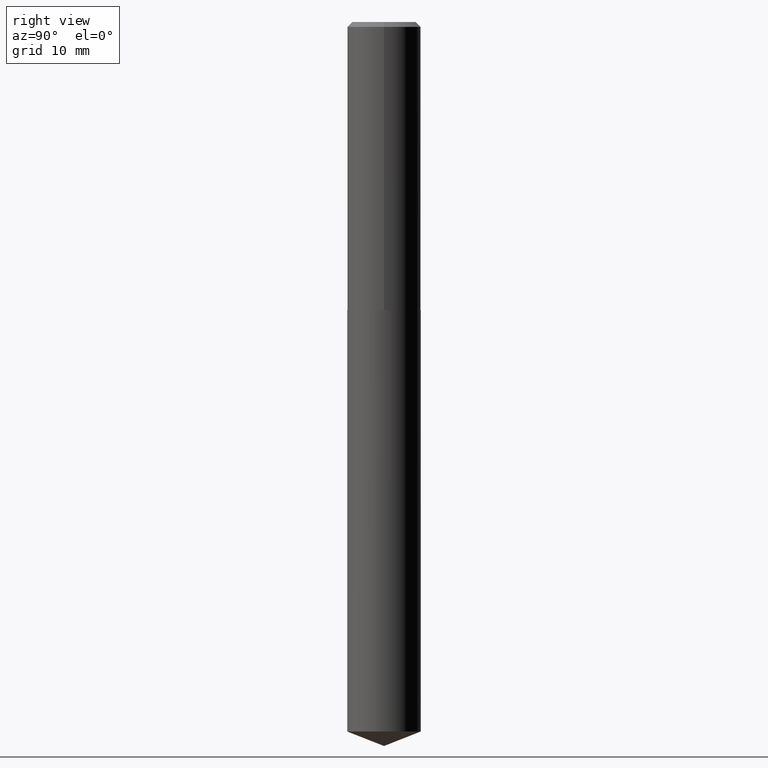
[diagram: clean part render]
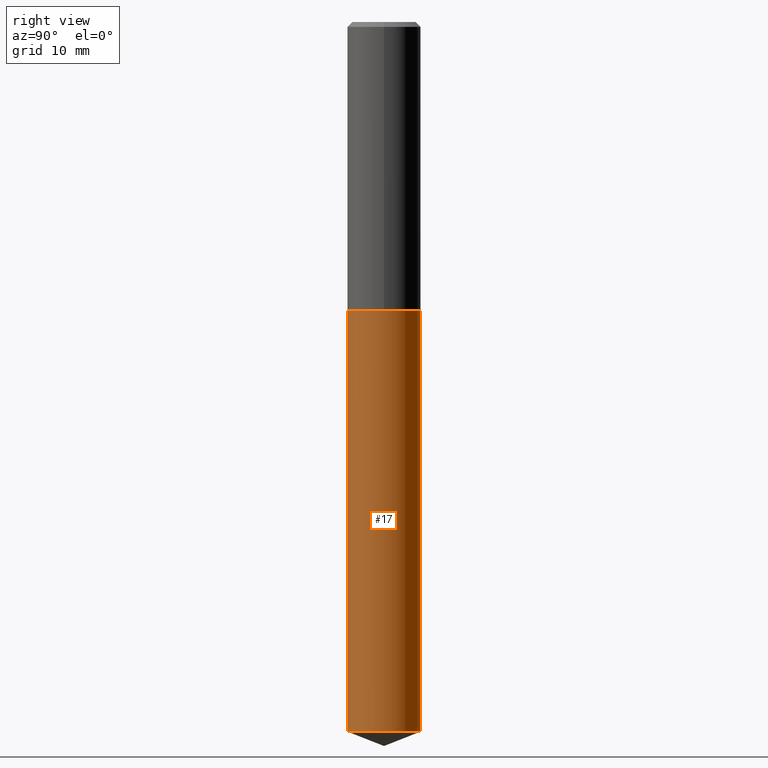
[diagram: same view with one face highlighted and labeled with its STEP entity id]
A machine part, right view. The second image highlights one B-rep face of the part: STEP entity #17.
In plain terms, the highlighted cylindrical surface (partial cylindrical patch) has radius 5.9995 mm, axis along (-0, 0, 1).
Its self-contained STEP definition (entity closure, byte-faithful):
#15 = DIRECTION ( 'NONE',  ( -6.982962677686265922E-15, -1.000000000000000000, 4.626330217890369336E-15 ) ) ;
#17 = ADVANCED_FACE ( 'NONE', ( #376 ), #286, .T. ) ;
#21 = VERTEX_POINT ( 'NONE', #138 ) ;
#24 = EDGE_LOOP ( 'NONE', ( #52, #142, #267, #34 ) ) ;
#34 = ORIENTED_EDGE ( 'NONE', *, *, #338, .F. ) ;
#36 = DIRECTION ( 'NONE',  ( -2.445391842571962110E-29, 3.491591555117708420E-15, 1.000000000000000000 ) ) ;
#40 = CARTESIAN_POINT ( 'NONE',  ( 1.678301941865467821E-15, 0.2361999999999840893, -4.552958345659752659 ) ) ;
#52 = ORIENTED_EDGE ( 'NONE', *, *, #336, .T. ) ;
#56 = CARTESIAN_POINT ( 'NONE',  ( 4.525829119606832626E-29, -6.461684513797009689E-15, -1.850700000000000012 ) ) ;
#109 = CARTESIAN_POINT ( 'NONE',  ( 1.678301941865468807E-15, 0.2361999999999935818, -1.850700000000000900 ) ) ;
#123 = VECTOR ( 'NONE', #159, 39.37007874015748143 ) ;
#138 = CARTESIAN_POINT ( 'NONE',  ( -1.649375784469450574E-15, -0.2362000000000064603, -1.850699999999999124 ) ) ;
#142 = ORIENTED_EDGE ( 'NONE', *, *, #350, .T. ) ;
#155 = VERTEX_POINT ( 'NONE', #109 ) ;
#159 = DIRECTION ( 'NONE',  ( -2.445391842571962110E-29, 3.491591555117708420E-15, 1.000000000000000000 ) ) ;
#177 = CARTESIAN_POINT ( 'NONE',  ( 4.525829119606832626E-29, -6.461684513797009689E-15, -1.850700000000000012 ) ) ;
#186 = CARTESIAN_POINT ( 'NONE',  ( 1.678301941865401754E-15, 0.2361999999999935540, -1.850700000000000900 ) ) ;
#212 = CARTESIAN_POINT ( 'NONE',  ( 1.113390963460519513E-28, -1.589686693324894697E-14, -4.552958345659751771 ) ) ;
#244 = CIRCLE ( 'NONE', #378, 0.2361999999999999933 ) ;
#252 = CIRCLE ( 'NONE', #285, 0.2361999999999999933 ) ;
#259 = EDGE_CURVE ( 'NONE', #21, #155, #244, .T. ) ;
#267 = ORIENTED_EDGE ( 'NONE', *, *, #259, .F. ) ;
#285 = AXIS2_PLACEMENT_3D ( 'NONE', #212, #305, #15 ) ;
#286 = CYLINDRICAL_SURFACE ( 'NONE', #369, 0.2361999999999999933 ) ;
#289 = VERTEX_POINT ( 'NONE', #314 ) ;
#295 = DIRECTION ( 'NONE',  ( -2.445391842571962110E-29, 3.491591555117708420E-15, 1.000000000000000000 ) ) ;
#303 = LINE ( 'NONE', #186, #123 ) ;
#305 = DIRECTION ( 'NONE',  ( -2.445391842571962110E-29, 3.491591555117708420E-15, 1.000000000000000000 ) ) ;
#306 = VECTOR ( 'NONE', #36, 39.37007874015748143 ) ;
#314 = CARTESIAN_POINT ( 'NONE',  ( -1.649375784469384507E-15, -0.2362000000000158972, -4.552958345659750883 ) ) ;
#335 = CARTESIAN_POINT ( 'NONE',  ( -1.649375784469450574E-15, -0.2362000000000064603, -1.850699999999999124 ) ) ;
#336 = EDGE_CURVE ( 'NONE', #289, #363, #252, .T. ) ;
#338 = EDGE_CURVE ( 'NONE', #289, #21, #358, .T. ) ;
#350 = EDGE_CURVE ( 'NONE', #363, #155, #303, .T. ) ;
#358 = LINE ( 'NONE', #335, #306 ) ;
#363 = VERTEX_POINT ( 'NONE', #40 ) ;
#369 = AXIS2_PLACEMENT_3D ( 'NONE', #177, #381, #388 ) ;
#375 = DIRECTION ( 'NONE',  ( -6.982962677686265922E-15, -1.000000000000000000, 3.469747663417777397E-15 ) ) ;
#376 = FACE_OUTER_BOUND ( 'NONE', #24, .T. ) ;
#378 = AXIS2_PLACEMENT_3D ( 'NONE', #56, #295, #375 ) ;
#381 = DIRECTION ( 'NONE',  ( -2.445391842571962110E-29, 3.491591555117708420E-15, 1.000000000000000000 ) ) ;
#388 = DIRECTION ( 'NONE',  ( -6.982962677686265922E-15, -1.000000000000000000, 3.469747663417777397E-15 ) ) ;